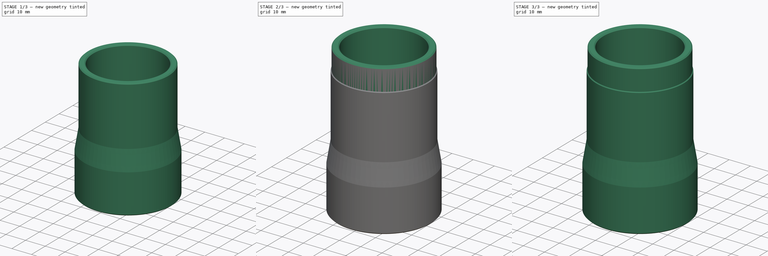
[diagram: build sequence overview — one tinted view per stage of 3, left to right]
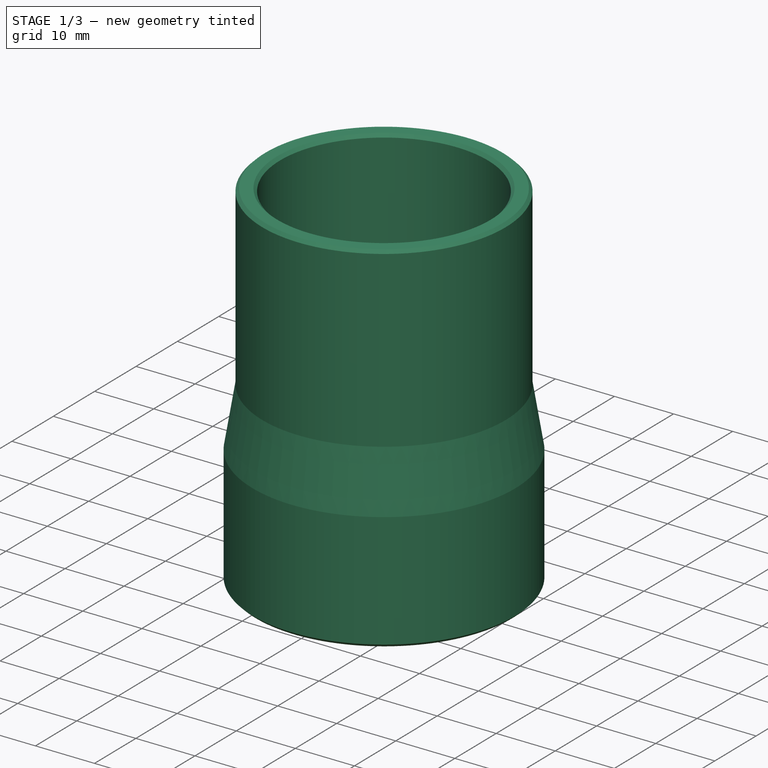
[diagram: stage 1 of 3 — iso view after this stage's code; geometry added in this stage tinted green]
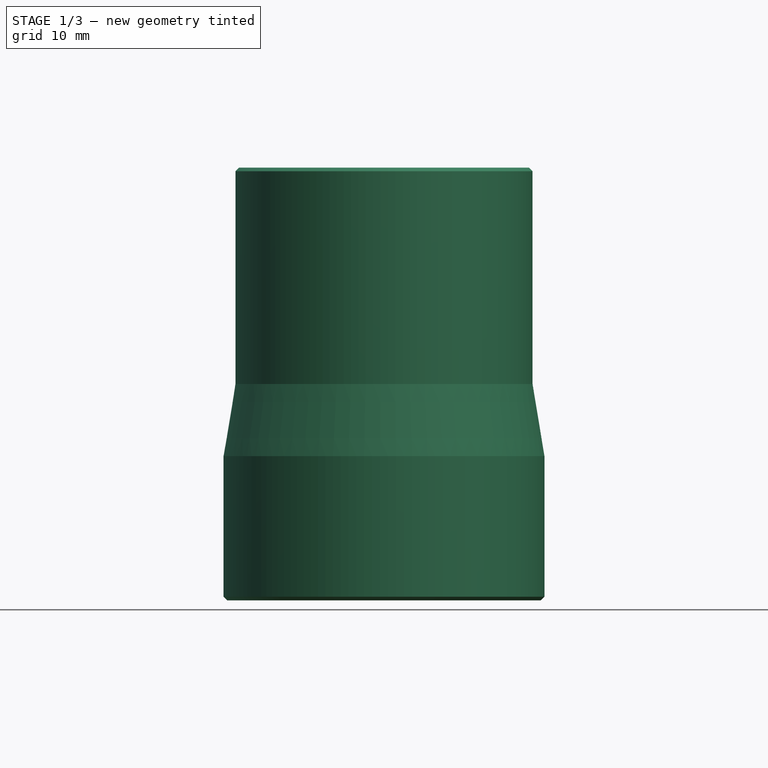
[diagram: stage 1 of 3 — front view after this stage's code; geometry added in this stage tinted green]
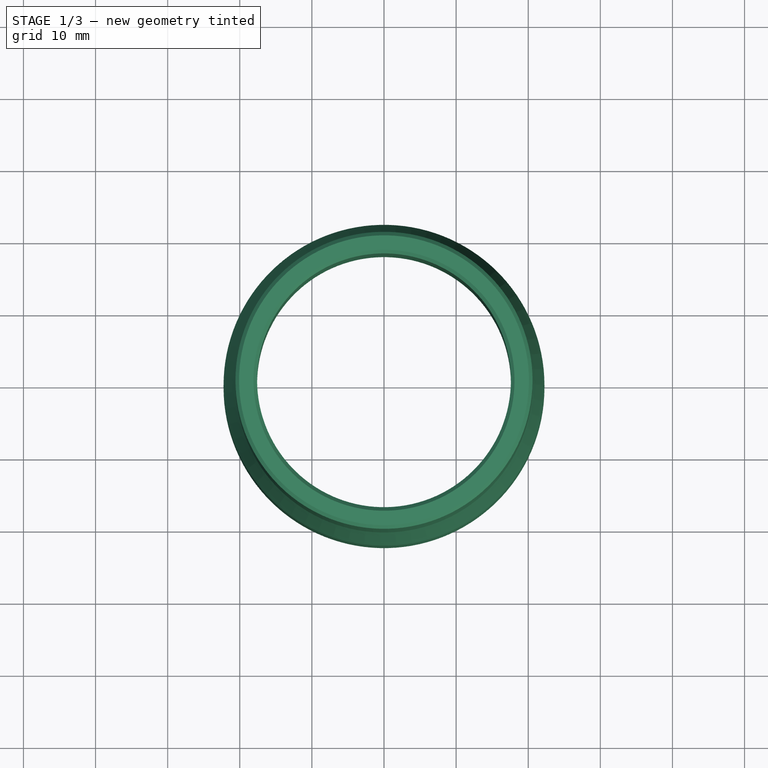
[diagram: stage 1 of 3 — top view after this stage's code; geometry added in this stage tinted green]
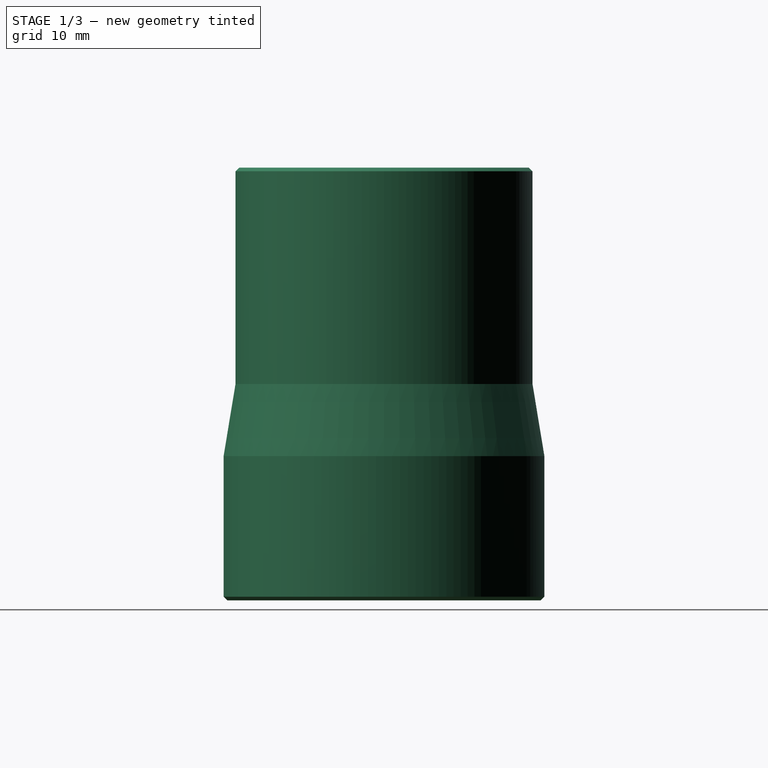
[diagram: stage 1 of 3 — right view after this stage's code; geometry added in this stage tinted green]
FCSTD DOCUMENT  (FreeCAD 0.16R6712 (Git))
Label: adaptadortubos
License: All rights reserved
LicenseURL: http://en.wikipedia.org/wiki/All_rights_reserved
objects: Sketcher::SketchObject×3, Part::Revolution×3, Part::Chamfer×3, App::DocumentObjectGroup×2, Part::Fillet×1
note: 10 computed .brp shape members not serialized (recipe doc carries the construction recipe); baked Part::Feature solids carry a one-line shape summary decoded from their .brp

FEATURE [App::DocumentObjectGroup] Group  label="tubo pertiga a aspiradora"
  Group = -> [Revolve001,Chamfer001]
FEATURE [Sketcher::SketchObject] Sketch002
  Placement = pos=(0,0,0) rot=(1,0,0;1.5708rad)
  sketch-geometry (8):
    g0: LineSegment StartX=19.25 StartY=0 StartZ=0 EndX=22.25 EndY=0 EndZ=0
    g1: LineSegment StartX=22.25 StartY=0 StartZ=0 EndX=22.25 EndY=20 EndZ=0
    g2: LineSegment StartX=22.25 StartY=20 StartZ=0 EndX=20.6 EndY=30 EndZ=0
    g3: LineSegment StartX=20.6 StartY=30 StartZ=0 EndX=20.6 EndY=60 EndZ=0
    g4: LineSegment StartX=20.6 StartY=60 StartZ=0 EndX=17.6 EndY=60 EndZ=0
    g5: LineSegment StartX=17.6 StartY=60 StartZ=0 EndX=17.6 EndY=29.7542 EndZ=0
    g6: LineSegment StartX=17.6 StartY=29.7542 StartZ=0 EndX=19.25 EndY=19.7542 EndZ=0
    g7: LineSegment StartX=19.25 StartY=19.7542 StartZ=0 EndX=19.25 EndY=0 EndZ=0
  constraints (24):
    c: PointOnObject(g0,g-1)
    c: Horizontal(g0)
    c: Coincident(g0,g1)
    c: Vertical(g1)
    c: Coincident(g1,g2)
    c: Coincident(g2,g3)
    c: Vertical(g3)
    c: Coincident(g3,g4)
    c: Horizontal(g4)
    c: Coincident(g4,g5)
    c: Vertical(g5)
    c: Coincident(g5,g6)
    c: Coincident(g6,g7)
    c: Coincident(g7,g0)
    c: Vertical(g7)
    c: DistanceX(g4,g3) = 3
    c: DistanceX(g0,g0) = 3
    c: Parallel(g6,g2)
    c: DistanceY(g3,g3) = 30
    c: DistanceY(g1,g1) = 20
    c: DistanceX(g-1,g0) = 19.25
    c: Distance(g6,g2) = 3
    c: DistanceX(g4) = 17.6
    c: DistanceY(g1,g2) = 10
FEATURE [Part::Revolution] Revolve002
  Angle = 360
  Axis = (0,0,1)
  Base = (0,0,0)
  Solid = true
  Source = -> Sketch002
FEATURE [Part::Chamfer] Chamfer002
  Base = -> Revolve002
  Edges = 4 edges r=0.5: [Edge1,Edge2,Edge7,Edge9]
FEATURE [App::DocumentObjectGroup] Group002  label="tubo cnc a aspiradora"
  Group = -> [Revolve002,Chamfer002]
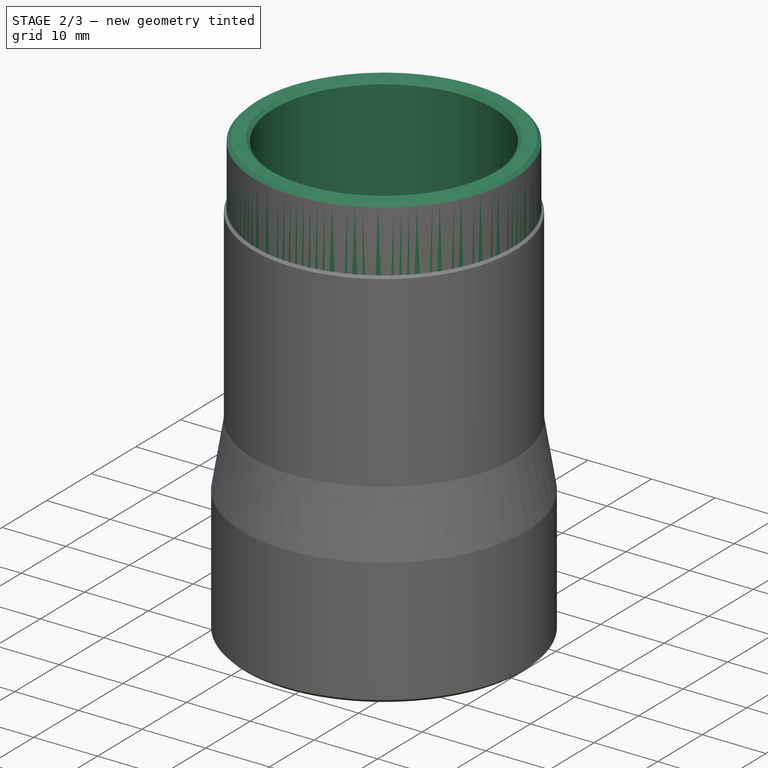
[diagram: stage 2 of 3 — iso view after this stage's code; geometry added in this stage tinted green]
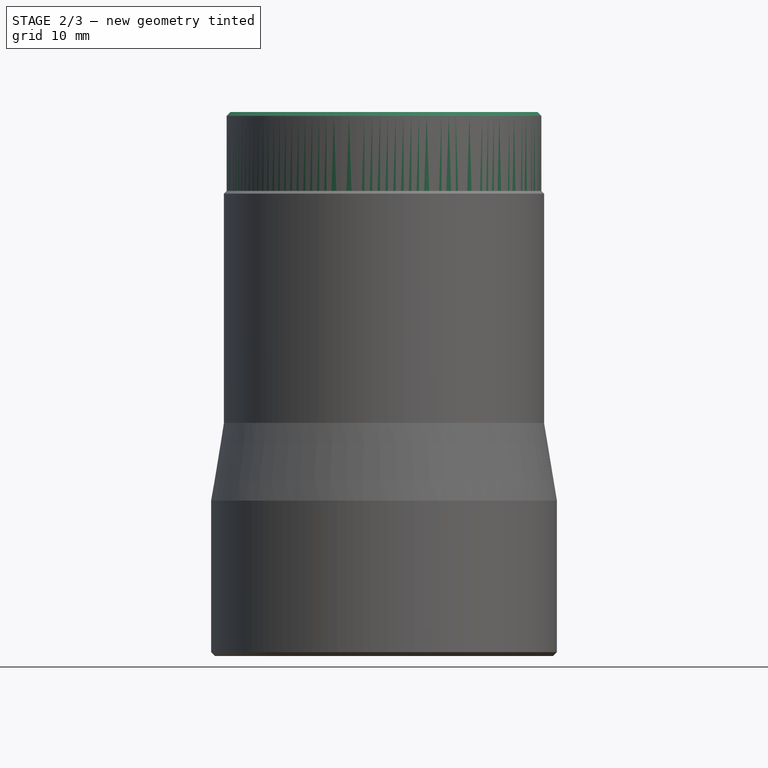
[diagram: stage 2 of 3 — front view after this stage's code; geometry added in this stage tinted green]
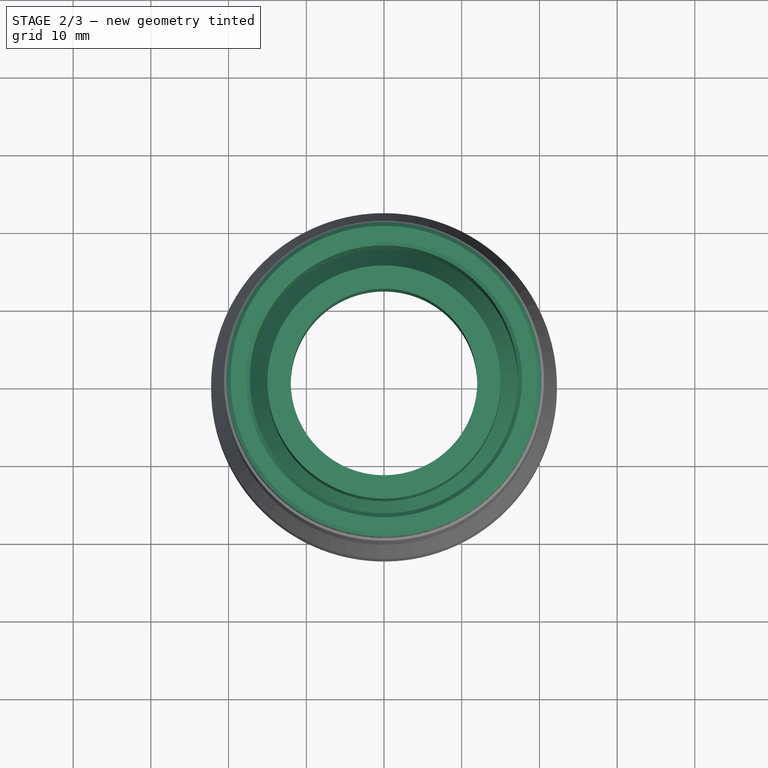
[diagram: stage 2 of 3 — top view after this stage's code; geometry added in this stage tinted green]
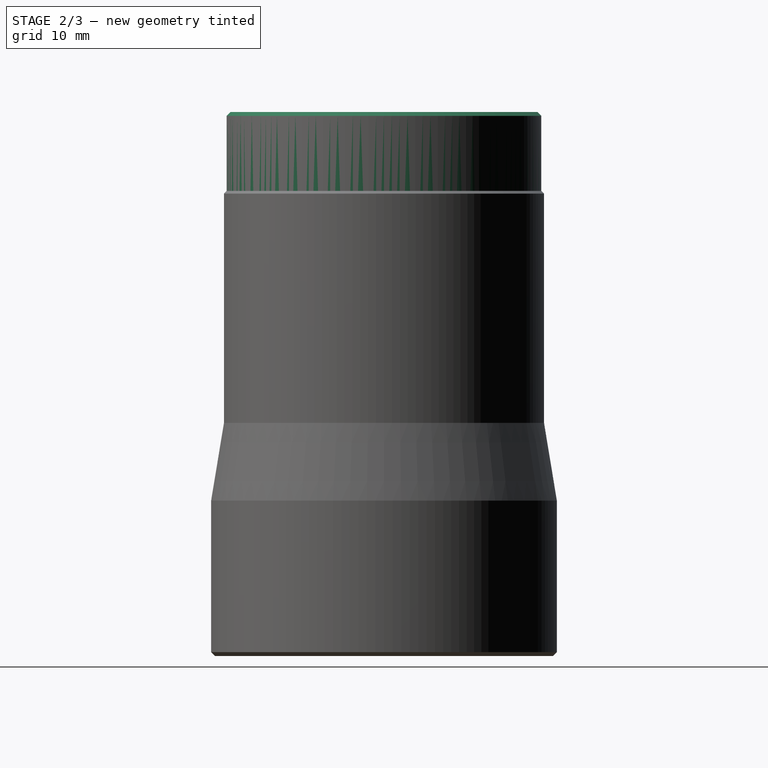
[diagram: stage 2 of 3 — right view after this stage's code; geometry added in this stage tinted green]
FEATURE [Sketcher::SketchObject] Sketch
  Placement = pos=(0,0,0) rot=(1,0,0;1.5708rad)
  sketch-geometry (8):
    g0: LineSegment StartX=18.25 StartY=0 StartZ=0 EndX=21.25 EndY=0 EndZ=0
    g1: LineSegment StartX=21.25 StartY=0 StartZ=0 EndX=21.25 EndY=20 EndZ=0
    g2: LineSegment StartX=21.25 StartY=20 StartZ=0 EndX=15 EndY=30 EndZ=0
    g3: LineSegment StartX=15 StartY=30 StartZ=0 EndX=15 EndY=50 EndZ=0
    g4: LineSegment StartX=15 StartY=50 StartZ=0 EndX=12 EndY=50 EndZ=0
    g5: LineSegment StartX=12 StartY=50 StartZ=0 EndX=12 EndY=29.1396 EndZ=0
    g6: LineSegment StartX=12 StartY=29.1396 StartZ=0 EndX=18.25 EndY=19.1396 EndZ=0
    g7: LineSegment StartX=18.25 StartY=19.1396 StartZ=0 EndX=18.25 EndY=0 EndZ=0
  constraints (24):
    c: PointOnObject(g0,g-1)
    c: Horizontal(g0)
    c: Coincident(g0,g1)
    c: Vertical(g1)
    c: Coincident(g1,g2)
    c: Coincident(g2,g3)
    c: Vertical(g3)
    c: Coincident(g3,g4)
    c: Horizontal(g4)
    c: Coincident(g4,g5)
    c: Vertical(g5)
    c: Coincident(g5,g6)
    c: Coincident(g6,g7)
    c: Coincident(g7,g0)
    c: Vertical(g7)
    c: DistanceX(g4,g3) = 3
    c: DistanceX(g0,g0) = 3
    c: Parallel(g6,g2)
    c: DistanceY(g3,g3) = 20
    c: DistanceY(g1,g1) = 20
    c: DistanceX(g-1,g3) = 15
    c: DistanceX(g-1,g0) = 18.25
    c: Distance(g6,g2) = 3
    c: DistanceY(g0,g4) = 50
FEATURE [Part::Revolution] Revolve
  Angle = 360
  Axis = (0,0,1)
  Base = (0,0,0)
  Solid = true
  Source = -> Sketch
FEATURE [Sketcher::SketchObject] Sketch001
  Placement = pos=(0,0,0) rot=(1,0,0;1.5708rad)
  sketch-geometry (8):
    g0: LineSegment StartX=17.6 StartY=0 StartZ=0 EndX=20.6 EndY=0 EndZ=0
    g1: LineSegment StartX=20.6 StartY=0 StartZ=0 EndX=20.6 EndY=30 EndZ=0
    g2: LineSegment StartX=20.6 StartY=30 StartZ=0 EndX=20.25 EndY=40 EndZ=0
    g3: LineSegment StartX=20.25 StartY=40 StartZ=0 EndX=20.25 EndY=70 EndZ=0
    g4: LineSegment StartX=20.25 StartY=70 StartZ=0 EndX=17.25 EndY=70 EndZ=0
    g5: LineSegment StartX=17.25 StartY=70 StartZ=0 EndX=17.25 EndY=39.9475 EndZ=0
    g6: LineSegment StartX=17.25 StartY=39.9475 StartZ=0 EndX=17.6 EndY=29.9475 EndZ=0
    g7: LineSegment StartX=17.6 StartY=29.9475 StartZ=0 EndX=17.6 EndY=0 EndZ=0
  constraints (23):
    c: PointOnObject(g0,g-1)
    c: Horizontal(g0)
    c: Coincident(g0,g1)
    c: Vertical(g1)
    c: Coincident(g1,g2)
    c: Coincident(g2,g3)
    c: Vertical(g3)
    c: Coincident(g3,g4)
    c: Horizontal(g4)
    c: Coincident(g4,g5)
    c: Vertical(g5)
    c: Coincident(g5,g6)
    c: Coincident(g6,g7)
    c: Coincident(g7,g0)
    c: Vertical(g7)
    c: DistanceX(g4,g3) = 3
    c: DistanceX(g0,g0) = 3
    c: Parallel(g6,g2)
    c: DistanceY(g3,g3) = 30
    c: DistanceY(g1,g1) = 30
    c: DistanceX(g-1,g0) = 17.6
    c: Distance(g6,g2) = 3
    c: DistanceY(g1,g2) = 10
FEATURE [Part::Revolution] Revolve001
  Angle = 360
  Axis = (0,0,1)
  Base = (0,0,0)
  Solid = true
  Source = -> Sketch001
FEATURE [Part::Chamfer] Chamfer001
  Base = -> Revolve001
  Edges = 4 edges r=0.5: [Edge1,Edge2,Edge7,Edge9]
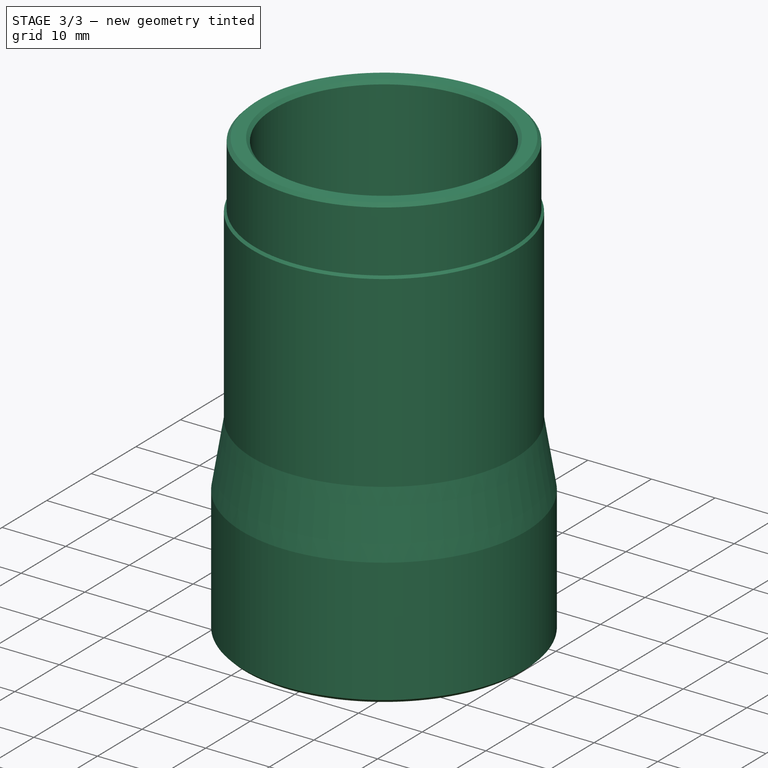
[diagram: stage 3 of 3 — iso view after this stage's code; geometry added in this stage tinted green]
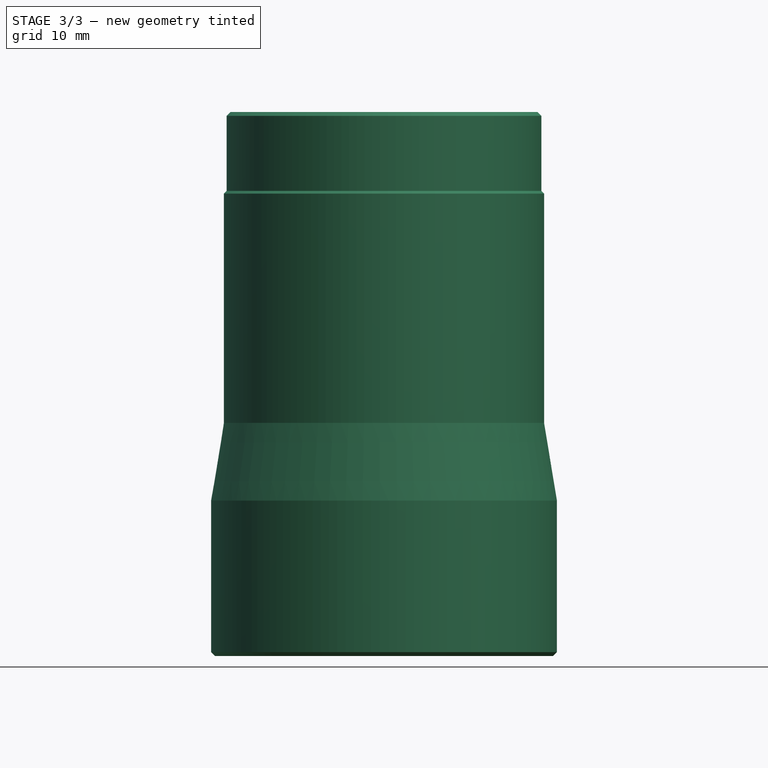
[diagram: stage 3 of 3 — front view after this stage's code; geometry added in this stage tinted green]
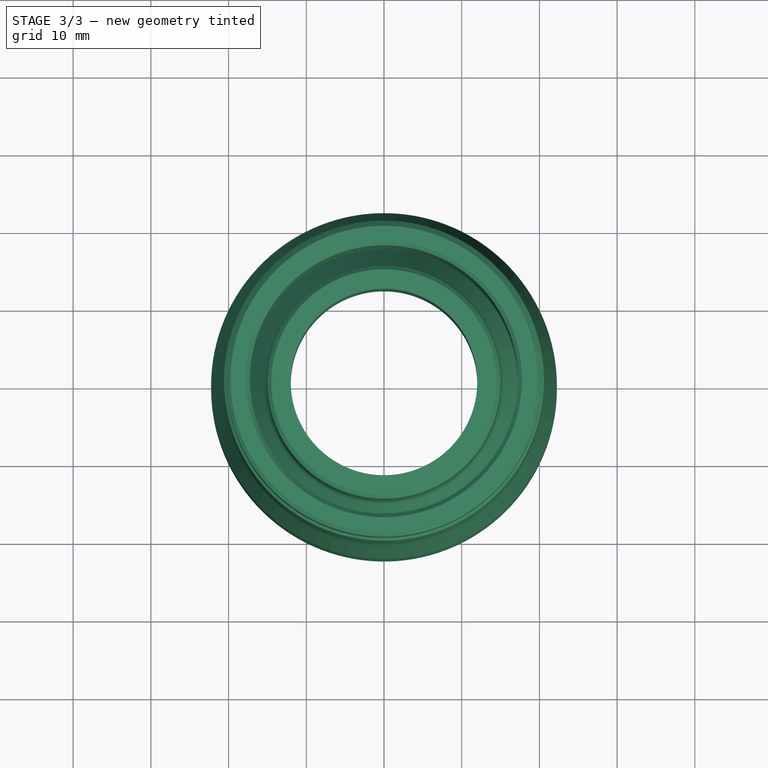
[diagram: stage 3 of 3 — top view after this stage's code; geometry added in this stage tinted green]
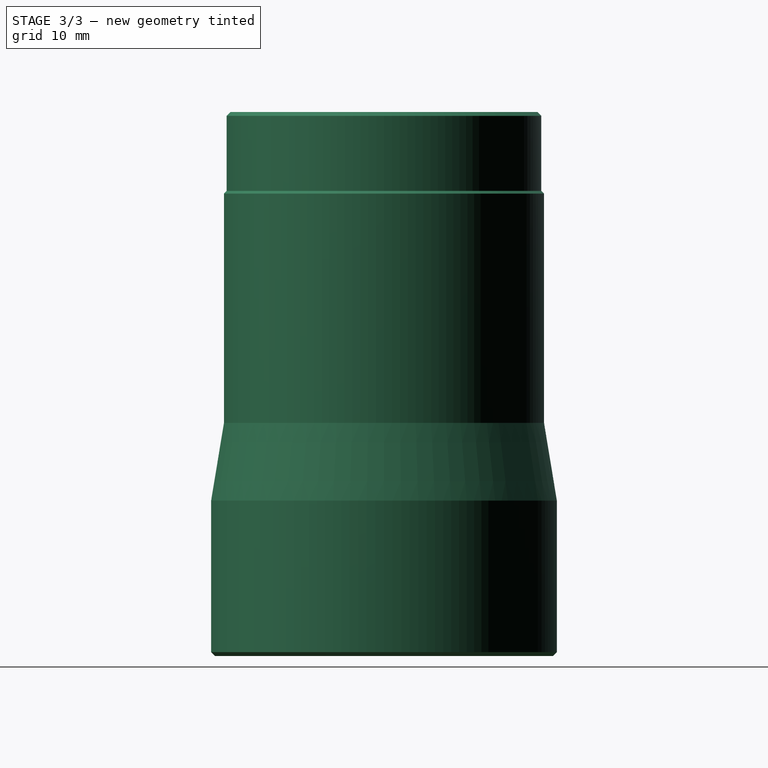
[diagram: stage 3 of 3 — right view after this stage's code; geometry added in this stage tinted green]
FEATURE [Part::Fillet] Fillet
  Base = -> Revolve
  Edges = 4 edges r=3: [Edge3,Edge5,Edge10,Edge12]
FEATURE [Part::Chamfer] Chamfer
  Base = -> Fillet
  Edges = 4 edges r=0.5: [Edge3,Edge6,Edge16,Edge17]
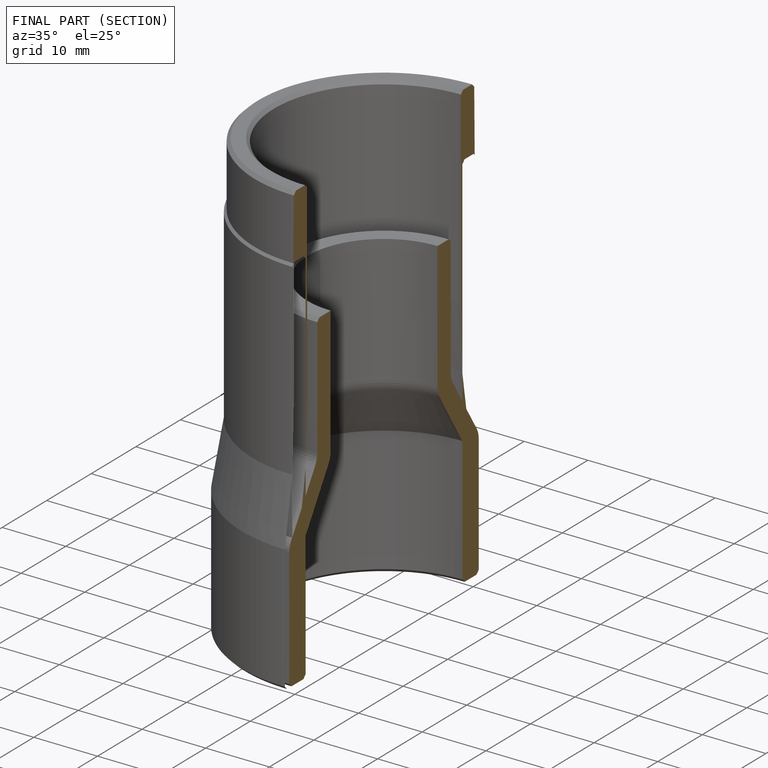
[diagram: finished part — half-section view (interior)]
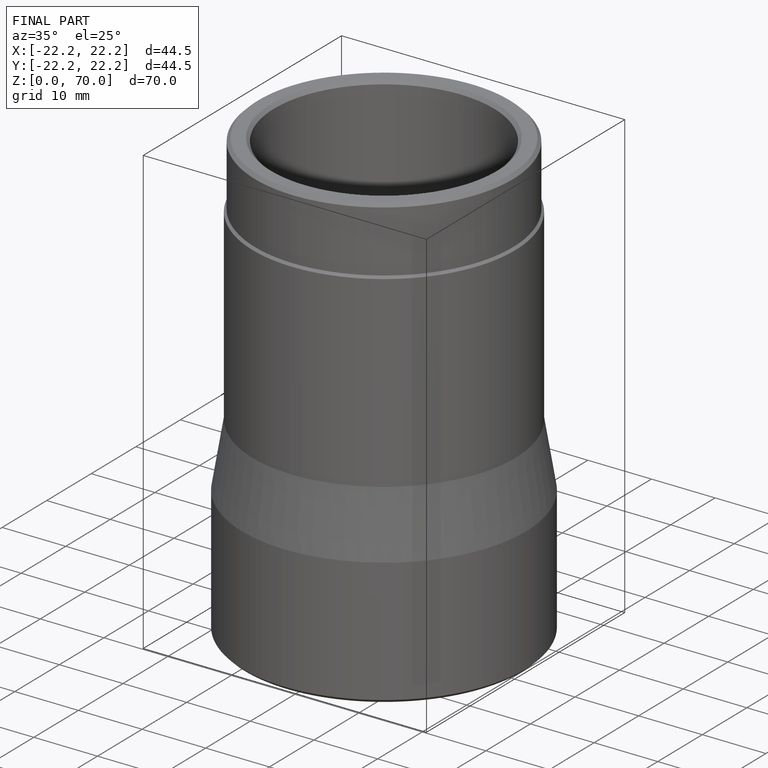
[diagram: finished part — iso view with bounding-box wireframe]
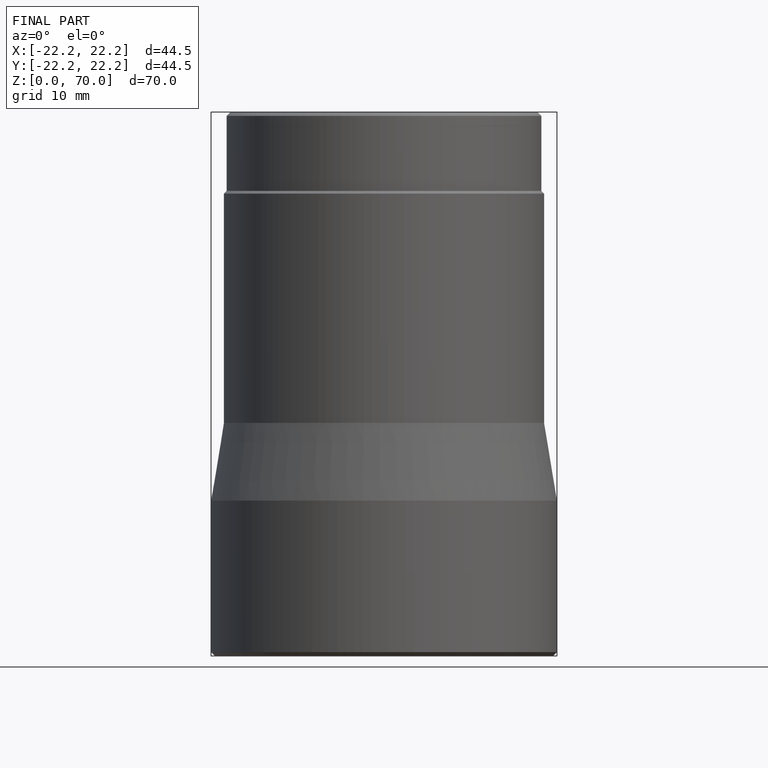
[diagram: finished part — front view with bounding-box wireframe]
